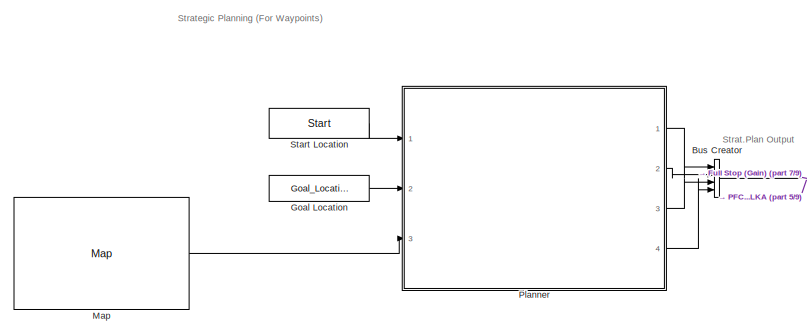
[diagram: root canvas - part 1/9, top center region]
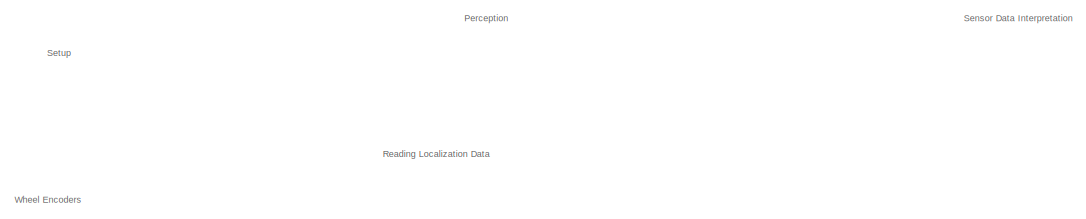
[diagram: root canvas - part 2/9, top left region]
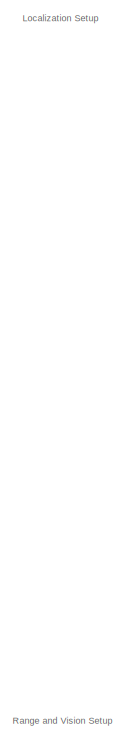
[diagram: root canvas - part 3/9, middle left region]
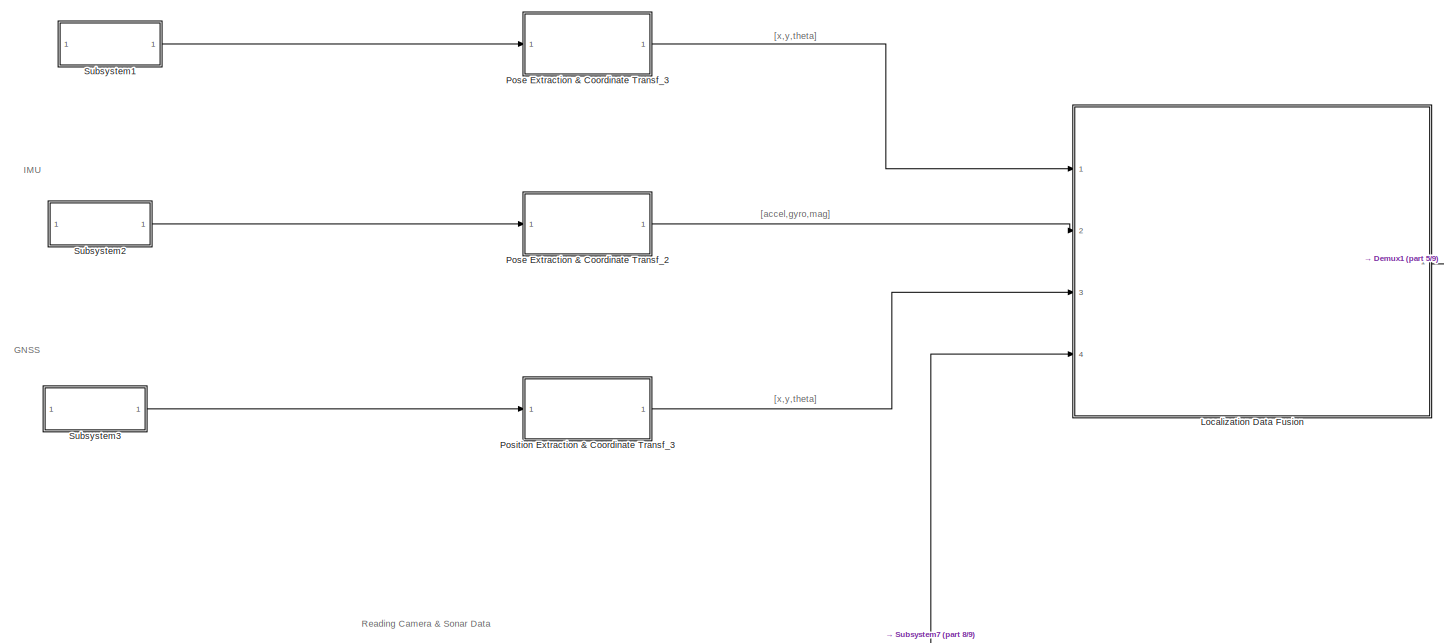
[diagram: root canvas - part 4/9, middle left region]
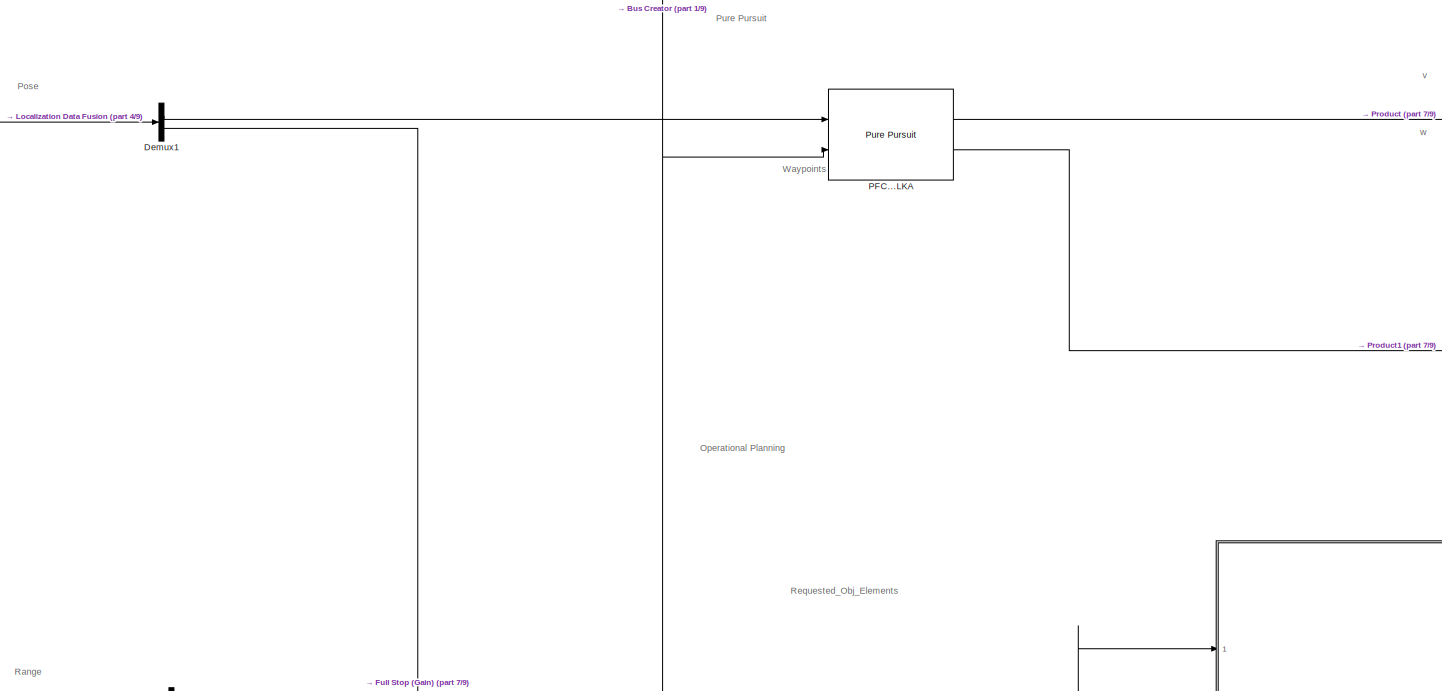
[diagram: root canvas - part 5/9, central region]
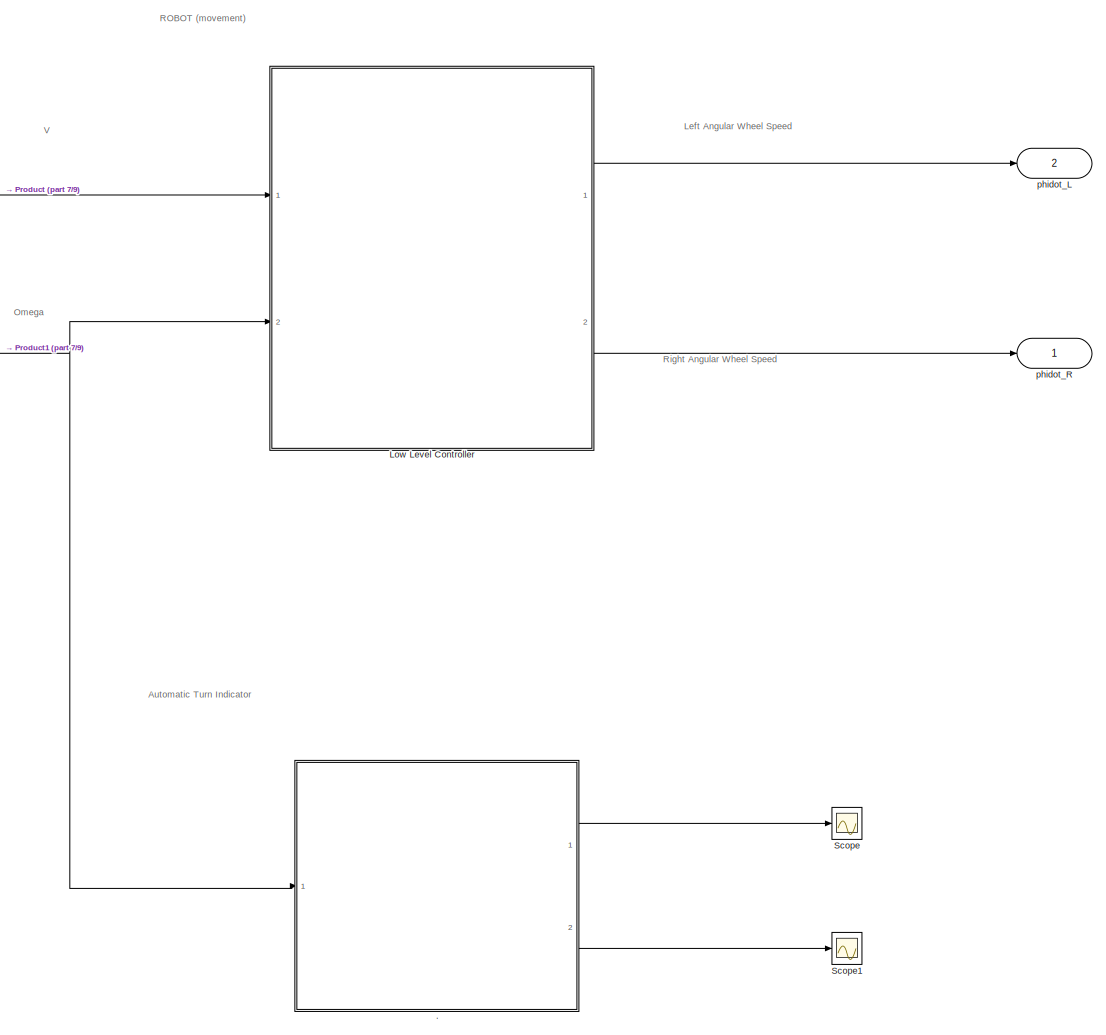
[diagram: root canvas - part 6/9, bottom right region]
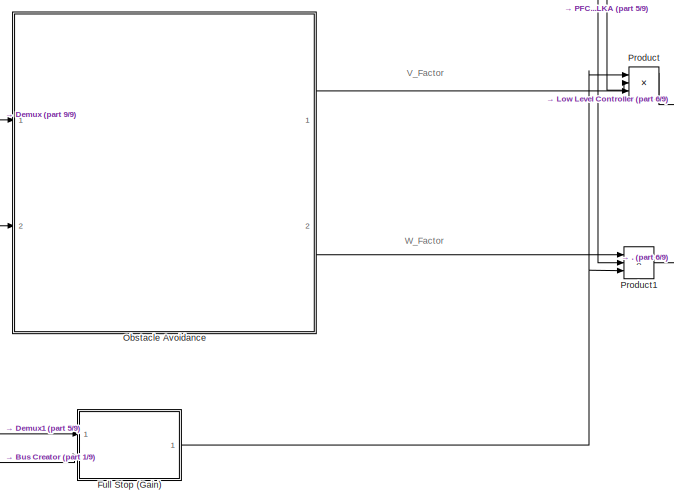
[diagram: root canvas - part 7/9, bottom right region]
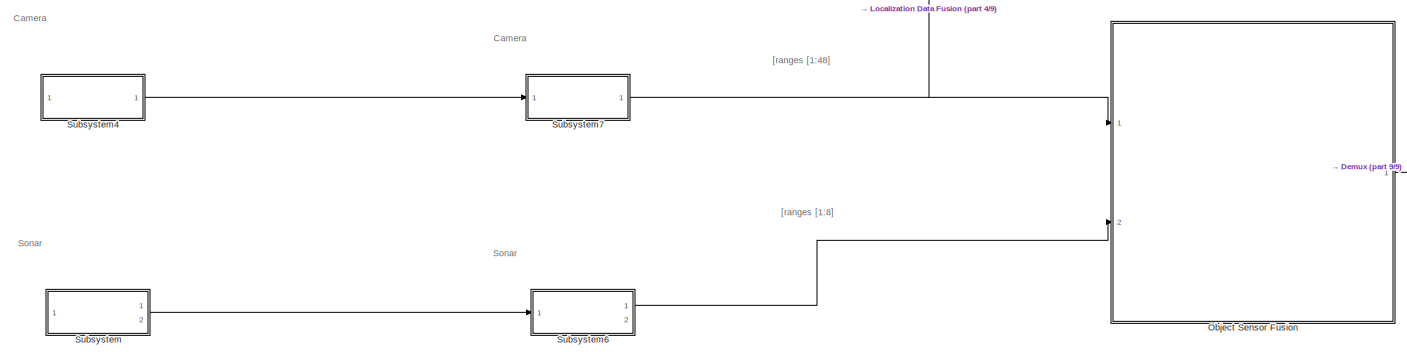
[diagram: root canvas - part 8/9, middle left region]
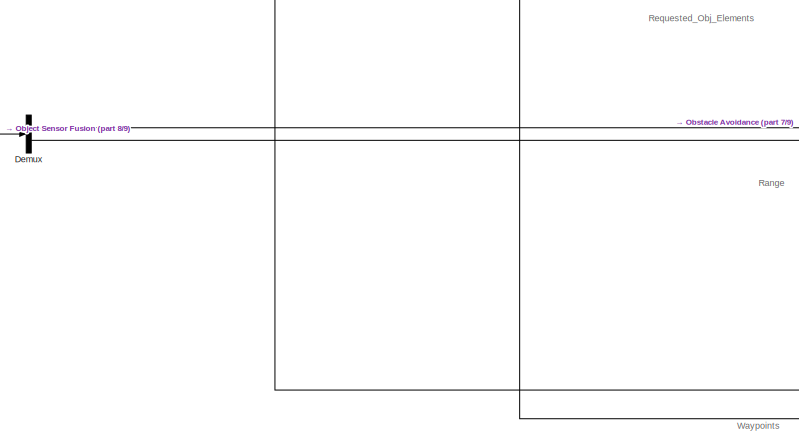
[diagram: root canvas - part 9/9, bottom center region]
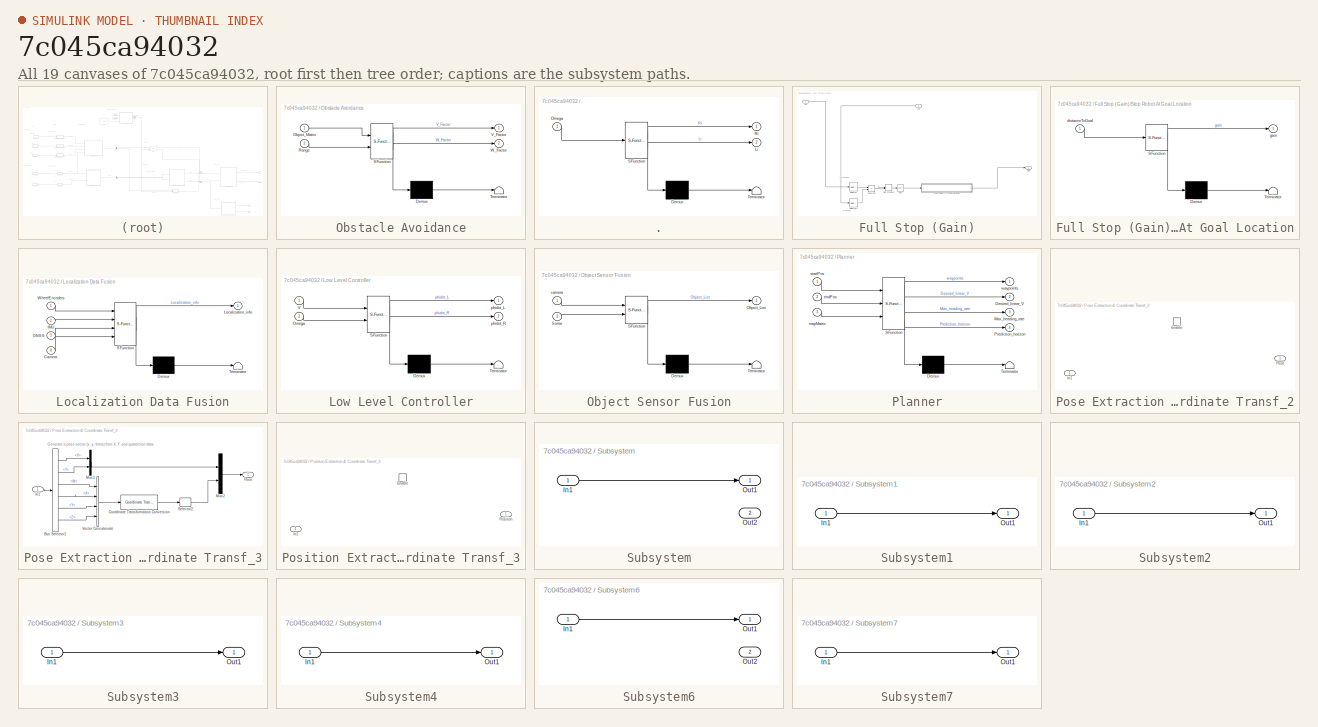
[diagram: thumbnail index - all 19 canvases of the model, root first then tree order]
MODEL slx_7c045ca94032
KIND model
CONFIG AbsTol = auto
CONFIG EnableMultiTasking = off
CONFIG FixedStep = auto
CONFIG MaxStep = auto
CONFIG MinStep = auto
CONFIG RelTol = 1e-3
CONFIG SampleTimeConstraint = Unconstrained
CONFIG SolverName = VariableStepAuto
CONFIG StartTime = 0.0
CONFIG StopTime = 10.0
BLOCK [SubSystem]  Obstacle Avoidance 
  ErrorFcn = Stateflow.Translate.translate
  PermitHierarchicalResolution = ExplicitOnly
  Ports = [2, 2]
  RequestExecContextInheritance = off
  SFBlockType = MATLAB Function
  TreatAsAtomicUnit = on
BLOCK [Demux]  Obstacle Avoidance / Demux 
  Outputs = 1
  Ports = [1, 1]
BLOCK [S-Function]  Obstacle Avoidance / SFunction 
  EnableBusSupport = off
  FunctionName = sf_sfun
  PortCounts = [2 3]
  Ports = [2, 3]
  SFcnIsStateOwnerBlock = off
  SFunctionDeploymentMode = off
  Tag = Stateflow S-Function 7
BLOCK [Terminator]  Obstacle Avoidance / Terminator 
BLOCK [Inport]  Obstacle Avoidance /Object_Matrix
BLOCK [Inport]  Obstacle Avoidance /Range
  Port = 2
BLOCK [Outport]  Obstacle Avoidance /V_Factor
BLOCK [Outport]  Obstacle Avoidance /W_Factor
  Port = 2
BLOCK [SubSystem] .
  ErrorFcn = Stateflow.Translate.translate
  NameLocation = top
  PermitHierarchicalResolution = ExplicitOnly
  Ports = [1, 2]
  RequestExecContextInheritance = off
  SFBlockType = MATLAB Function
  TreatAsAtomicUnit = on
BLOCK [Demux] ./ Demux 
  Outputs = 1
  Ports = [1, 1]
BLOCK [S-Function] ./ SFunction 
  EnableBusSupport = off
  FunctionName = sf_sfun
  PortCounts = [1 3]
  Ports = [1, 3]
  SFcnIsStateOwnerBlock = off
  SFunctionDeploymentMode = off
  Tag = Stateflow S-Function 5
BLOCK [Terminator] ./ Terminator 
BLOCK [Outport] ./Li
  Port = 2
BLOCK [Inport] ./Omega
BLOCK [Outport] ./Ri
BLOCK [BusCreator] Bus Creator
  DisplayOption = bar
  InheritFromInputs = on
  Inputs = 4
  Ports = [4, 1]
BLOCK [Demux] Demux
  Outputs = 2
  Ports = [1, 2]
BLOCK [Demux] Demux1
  Outputs = 2
  Ports = [1, 2]
BLOCK [SubSystem] Full Stop (Gain)
  Ports = [2, 1]
  RequestExecContextInheritance = off
BLOCK [DotProduct] Full Stop (Gain)/Dot Product
  OutDataTypeStr = Inherit: Inherit via internal rule
BLOCK [Inport] Full Stop (Gain)/In1
BLOCK [Inport] Full Stop (Gain)/In2
  Port = 2
BLOCK [Selector] Full Stop (Gain)/Selector
  IndexOptions = Index vector (dialog)
  Indices = [1 2]
  InputPortWidth = 3
  OutputSizes = 1
  Ports = [1, 1]
BLOCK [Selector] Full Stop (Gain)/Selector1
  IndexOptions = Index vector (dialog)
  Indices = [1 2]
  InputPortWidth = 3
  OutputSizes = 1
  Ports = [1, 1]
BLOCK [Sqrt] Full Stop (Gain)/Sqrt
BLOCK [SubSystem] Full Stop (Gain)/Stop Robot At Goal Location
  ErrorFcn = Stateflow.Translate.translate
  PermitHierarchicalResolution = ExplicitOnly
  Ports = [1, 1]
  RequestExecContextInheritance = off
  SFBlockType = MATLAB Function
  TreatAsAtomicUnit = on
BLOCK [Demux] Full Stop (Gain)/Stop Robot At Goal Location/ Demux 
  Outputs = 1
  Ports = [1, 1]
BLOCK [S-Function] Full Stop (Gain)/Stop Robot At Goal Location/ SFunction 
  EnableBusSupport = off
  FunctionName = sf_sfun
  PortCounts = [1 2]
  Ports = [1, 2]
  SFcnIsStateOwnerBlock = off
  SFunctionDeploymentMode = off
  Tag = Stateflow S-Function 1
BLOCK [Terminator] Full Stop (Gain)/Stop Robot At Goal Location/ Terminator 
BLOCK [Inport] Full Stop (Gain)/Stop Robot At Goal Location/distanceToGoal
BLOCK [Outport] Full Stop (Gain)/Stop Robot At Goal Location/gain
BLOCK [Sum] Full Stop (Gain)/Subtract
  IconShape = rectangular
  Inputs = +-
  Ports = [2, 1]
BLOCK [Outport] Full Stop (Gain)/gain
BLOCK [Constant] Goal Location
  Value = Goal_Location
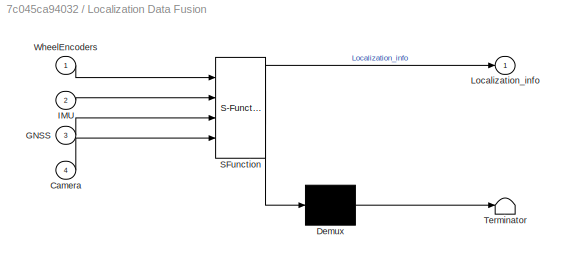
BLOCK [SubSystem] Localization Data Fusion
  ErrorFcn = Stateflow.Translate.translate
  PermitHierarchicalResolution = ExplicitOnly
  Ports = [4, 1]
  RequestExecContextInheritance = off
  SFBlockType = MATLAB Function
  TreatAsAtomicUnit = on
BLOCK [Demux] Localization Data Fusion/ Demux 
  Outputs = 1
  Ports = [1, 1]
BLOCK [S-Function] Localization Data Fusion/ SFunction 
  EnableBusSupport = off
  FunctionName = sf_sfun
  PortCounts = [4 2]
  Ports = [4, 2]
  SFcnIsStateOwnerBlock = off
  SFunctionDeploymentMode = off
  Tag = Stateflow S-Function 2
BLOCK [Terminator] Localization Data Fusion/ Terminator 
BLOCK [Inport] Localization Data Fusion/Camera
  Port = 4
BLOCK [Inport] Localization Data Fusion/GNSS
  Port = 3
BLOCK [Inport] Localization Data Fusion/IMU
  Port = 2
BLOCK [Outport] Localization Data Fusion/Localization_info
  VectorParamsAs1DForOutWhenUnconnected = off
BLOCK [Inport] Localization Data Fusion/WheelEncoders
BLOCK [SubSystem] Low Level Controller
  ErrorFcn = Stateflow.Translate.translate
  PermitHierarchicalResolution = ExplicitOnly
  Ports = [2, 2]
  RequestExecContextInheritance = off
  SFBlockType = MATLAB Function
  TreatAsAtomicUnit = on
BLOCK [Demux] Low Level Controller/ Demux 
  Outputs = 1
  Ports = [1, 1]
BLOCK [S-Function] Low Level Controller/ SFunction 
  EnableBusSupport = off
  FunctionName = sf_sfun
  PortCounts = [2 3]
  Ports = [2, 3]
  SFcnIsStateOwnerBlock = off
  SFunctionDeploymentMode = off
  Tag = Stateflow S-Function 9
BLOCK [Terminator] Low Level Controller/ Terminator 
BLOCK [Inport] Low Level Controller/Omega
  Port = 2
BLOCK [Inport] Low Level Controller/V
BLOCK [Outport] Low Level Controller/phidot_L
BLOCK [Outport] Low Level Controller/phidot_R
  Port = 2
BLOCK [Constant] Map
  Value = Map
BLOCK [SubSystem] Object Sensor Fusion
  ErrorFcn = Stateflow.Translate.translate
  PermitHierarchicalResolution = ExplicitOnly
  Ports = [2, 1]
  RequestExecContextInheritance = off
  SFBlockType = MATLAB Function
  TreatAsAtomicUnit = on
BLOCK [Demux] Object Sensor Fusion/ Demux 
  Outputs = 1
  Ports = [1, 1]
BLOCK [S-Function] Object Sensor Fusion/ SFunction 
  EnableBusSupport = off
  FunctionName = sf_sfun
  PortCounts = [2 2]
  Ports = [2, 2]
  SFcnIsStateOwnerBlock = off
  SFunctionDeploymentMode = off
  Tag = Stateflow S-Function 4
BLOCK [Terminator] Object Sensor Fusion/ Terminator 
BLOCK [Outport] Object Sensor Fusion/Object_List
  VectorParamsAs1DForOutWhenUnconnected = off
BLOCK [Inport] Object Sensor Fusion/Sonar
  Port = 2
BLOCK [Inport] Object Sensor Fusion/camera
BLOCK [Reference] PFC...LKA  REF=robotalgslib/Pure Pursuit
  Ports = [2, 2]
  SourceBlock = robotalgslib/Pure Pursuit
  SourceProductBaseCode = NV,RO
  SourceType = nav.slalgs.internal.PurePursuit
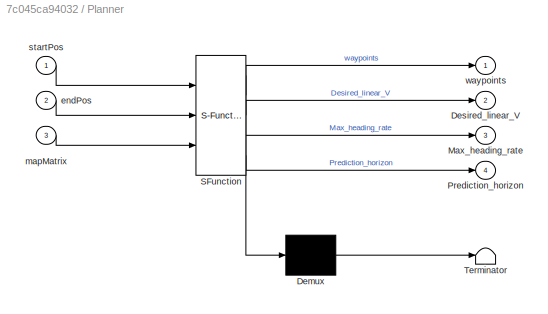
BLOCK [SubSystem] Planner
  ErrorFcn = Stateflow.Translate.translate
  PermitHierarchicalResolution = ExplicitOnly
  Ports = [3, 4]
  RequestExecContextInheritance = off
  SFBlockType = MATLAB Function
  TreatAsAtomicUnit = on
BLOCK [Demux] Planner/ Demux 
  Outputs = 1
  Ports = [1, 1]
BLOCK [S-Function] Planner/ SFunction 
  EnableBusSupport = off
  FunctionName = sf_sfun
  PortCounts = [3 5]
  Ports = [3, 5]
  SFcnIsStateOwnerBlock = off
  SFunctionDeploymentMode = off
  Tag = Stateflow S-Function 3
BLOCK [Terminator] Planner/ Terminator 
BLOCK [Outport] Planner/Desired_linear_V
  Port = 2
BLOCK [Outport] Planner/Max_heading_rate
  Port = 3
BLOCK [Outport] Planner/Prediction_horizon
  Port = 4
BLOCK [Inport] Planner/endPos
  Port = 2
BLOCK [Inport] Planner/mapMatrix
  Port = 3
BLOCK [Inport] Planner/startPos
BLOCK [Outport] Planner/waypoints
  VectorParamsAs1DForOutWhenUnconnected = off
BLOCK [SubSystem] Pose Extraction & Coordinate Transf_2
  Ports = [1, 1, 1]
  RequestExecContextInheritance = off
BLOCK [EnablePort] Pose Extraction & Coordinate Transf_2/Enable
  Ports = []
BLOCK [Inport] Pose Extraction & Coordinate Transf_2/In1
BLOCK [Outport] Pose Extraction & Coordinate Transf_2/Pose
  VectorParamsAs1DForOutWhenUnconnected = off
BLOCK [SubSystem] Pose Extraction & Coordinate Transf_3
  Ports = [1, 1]
  RequestExecContextInheritance = off
BLOCK [BusSelector] Pose Extraction & Coordinate Transf_3/Bus Selector1
  OutputSignals = Pose.Pose.Position.X,Pose.Pose.Position.Y,Pose.Pose.Orientation.W,Pose.Pose.Orientation.X,Pose.Pose.Orientation.Y,Pose.Pose.Orientation.Z
  Ports = [1, 6]
BLOCK [Reference] Pose Extraction & Coordinate Transf_3/Coordinate Transformation Conversion  REF=robotcorelib/Coordinate Transformation Conversion
  Ports = [1, 1]
  SourceBlock = robotcorelib/Coordinate Transformation Conversion
  SourceProductBaseCode = NV,RO,RR,UV
  SourceType = robotics.slcore.internal.block.CoordinateTransformationConversion
BLOCK [Inport] Pose Extraction & Coordinate Transf_3/In1
BLOCK [Mux] Pose Extraction & Coordinate Transf_3/Mux1
  DisplayOption = bar
  Inputs = 2
  Ports = [2, 1]
BLOCK [Mux] Pose Extraction & Coordinate Transf_3/Mux2
  DisplayOption = bar
  Inputs = 2
  Ports = [2, 1]
BLOCK [Outport] Pose Extraction & Coordinate Transf_3/Pose
  VectorParamsAs1DForOutWhenUnconnected = off
BLOCK [Selector] Pose Extraction & Coordinate Transf_3/Selector2
  IndexOptions = Index vector (dialog)
  Indices = 1
  InputPortWidth = 3
  OutputSizes = 1
  Ports = [1, 1]
BLOCK [Concatenate] Pose Extraction & Coordinate Transf_3/Vector Concatenate
  NumInputs = 4
  Ports = [4, 1]
BLOCK [SubSystem] Position Extraction & Coordinate Transf_3
  Ports = [1, 1, 1]
  RequestExecContextInheritance = off
BLOCK [EnablePort] Position Extraction & Coordinate Transf_3/Enable
  Ports = []
BLOCK [Inport] Position Extraction & Coordinate Transf_3/In1
BLOCK [Outport] Position Extraction & Coordinate Transf_3/Position
  VectorParamsAs1DForOutWhenUnconnected = off
BLOCK [Product] Product
  Inputs = 3
  Ports = [3, 1]
BLOCK [Product] Product1
  Inputs = 3
  Ports = [3, 1]
BLOCK [Scope] Scope
  Floating = off
  NumInputPorts = 1
  Ports = [1]
  ScopeSpecificationString = Simulink.scopes.TimeScopeBlockCfg('CurrentConfiguration', extmgr.ConfigurationSet(extmgr.Configuration('Core','General UI',true),extmgr.Configuration('Core','Source UI',true),extmgr.Configuration('Sources','WiredSimulink',true),extmgr.Configuration('Visuals','Time Domain',true),extmgr.Configuration('Tools','Plot Navigation',true),extmgr.Configuration('Tools','Measurements',true,'Version','2021a'))...<+19ch>
BLOCK [Scope] Scope1
  Floating = off
  NumInputPorts = 1
  Ports = [1]
  ScopeSpecificationString = Simulink.scopes.TimeScopeBlockCfg('CurrentConfiguration', extmgr.ConfigurationSet(extmgr.Configuration('Core','General UI',true),extmgr.Configuration('Core','Source UI',true),extmgr.Configuration('Sources','WiredSimulink',true,'DataLoggingVariableName','ScopeData1'),extmgr.Configuration('Visuals','Time Domain',true),extmgr.Configuration('Tools','Plot Navigation',true),extmgr.Configuration('Tools',...<+58ch>
BLOCK [Constant] Start Location
  Value = Start
BLOCK [SubSystem] Subsystem
  PortSchema = {"entries":[{"content":{"sides":[{"content":{"connectorIds":["In1"]},"type":"ConnectorPlacement.EquallySpacedRectSide","uuid":"e12de4e3-7626-4c26-8ba2-c587ebf01e53"},{"content":{"connectorIds":["Out1"],"side":"RIGHT"},"type":"ConnectorPlacement.EquallySpacedRectSide","uuid":"0359bd44-2cf5-4332-8d76-03b01f15ad87"},{"content":{"connectorIds":[],"side":"TOP"},"type":"ConnectorPlacement.EquallySpacedR...<+392ch>
  Ports = [1, 2]
  RequestExecContextInheritance = off
BLOCK [Inport] Subsystem/In1
BLOCK [Outport] Subsystem/Out1
BLOCK [Outport] Subsystem/Out2
  Port = 2
BLOCK [SubSystem] Subsystem1
  Ports = [1, 1]
  RequestExecContextInheritance = off
BLOCK [Inport] Subsystem1/In1
BLOCK [Outport] Subsystem1/Out1
BLOCK [SubSystem] Subsystem2
  Ports = [1, 1]
  RequestExecContextInheritance = off
BLOCK [Inport] Subsystem2/In1
BLOCK [Outport] Subsystem2/Out1
BLOCK [SubSystem] Subsystem3
  Ports = [1, 1]
  RequestExecContextInheritance = off
BLOCK [Inport] Subsystem3/In1
BLOCK [Outport] Subsystem3/Out1
BLOCK [SubSystem] Subsystem4
  Ports = [1, 1]
  RequestExecContextInheritance = off
BLOCK [Inport] Subsystem4/In1
BLOCK [Outport] Subsystem4/Out1
BLOCK [SubSystem] Subsystem6
  PortSchema = {"entries":[{"content":{"sides":[{"content":{"connectorIds":["In1"]},"type":"ConnectorPlacement.EquallySpacedRectSide","uuid":"e12de4e3-7626-4c26-8ba2-c587ebf01e53"},{"content":{"connectorIds":["Out1"],"side":"RIGHT"},"type":"ConnectorPlacement.EquallySpacedRectSide","uuid":"0359bd44-2cf5-4332-8d76-03b01f15ad87"},{"content":{"connectorIds":[],"side":"TOP"},"type":"ConnectorPlacement.EquallySpacedR...<+392ch>
  Ports = [1, 2]
  RequestExecContextInheritance = off
BLOCK [Inport] Subsystem6/In1
BLOCK [Outport] Subsystem6/Out1
BLOCK [Outport] Subsystem6/Out2
  Port = 2
BLOCK [SubSystem] Subsystem7
  Ports = [1, 1]
  RequestExecContextInheritance = off
BLOCK [Inport] Subsystem7/In1
BLOCK [Outport] Subsystem7/Out1
BLOCK [Outport] phidot_L
  IconDisplay = Signal name
  Port = 2
BLOCK [Outport] phidot_R
  IconDisplay = Signal name
ANNOTATION (root): Perception
ANNOTATION (root): Range
ANNOTATION (root): Waypoints
ANNOTATION (root): Pose
ANNOTATION (root): Strat.Plan Output
ANNOTATION (root): [x,y,theta]
ANNOTATION (root): [accel,gyro,mag]
ANNOTATION (root): [ranges [1:48]
ANNOTATION (root): [ranges [1:8]
ANNOTATION (root): w
ANNOTATION (root): ROBOT (movement)
ANNOTATION (root): Automatic Turn Indicator
ANNOTATION (root): Setup
ANNOTATION (root): V
ANNOTATION (root): v
ANNOTATION (root): Sensor Data Interpretation
ANNOTATION (root): Camera
ANNOTATION (root): GNSS
ANNOTATION (root): IMU
ANNOTATION (root): Left Angular Wheel Speed
ANNOTATION (root): Localization Setup
ANNOTATION (root): Omega
ANNOTATION (root): Operational Planning
ANNOTATION (root): Pure Pursuit
ANNOTATION (root): Range and Vision Setup
ANNOTATION (root): Reading Camera & Sonar Data
ANNOTATION (root): Reading Localization Data
ANNOTATION (root): Requested_Obj_Elements
ANNOTATION (root): Right Angular Wheel Speed
ANNOTATION (root): Sonar
ANNOTATION (root): Strategic Planning (For Waypoints)
ANNOTATION (root): V_Factor
ANNOTATION (root): W_Factor
ANNOTATION (root): Wheel Encoders
ANNOTATION Full Stop (Gain): Actual Pose
ANNOTATION Full Stop (Gain): Goal Loc
ANNOTATION Pose Extraction & Coordinate Transf_3: Generate a pose vector (x, y, theta) from X, Y, and quaternion data
LINE  Obstacle Avoidance :1 -> Product:3
LINE  Obstacle Avoidance :2 -> Product1:1
LINE .:1 -> Scope:1
LINE .:2 -> Scope1:1
NET Bus Creator:1 -> Full Stop (Gain):2, PFC...LKA:2
LINE Demux1:1 -> PFC...LKA:1
LINE Demux1:2 -> Full Stop (Gain):1
LINE Demux:1 ->  Obstacle Avoidance :1
LINE Demux:2 ->  Obstacle Avoidance :2
LINE Full Stop (Gain)/Dot Product:1 -> Full Stop (Gain)/Sqrt:1
LINE Full Stop (Gain)/In1:1 -> Full Stop (Gain)/Selector:1
LINE Full Stop (Gain)/In2:1 -> Full Stop (Gain)/Selector1:1
LINE Full Stop (Gain)/Selector1:1 -> Full Stop (Gain)/Subtract:2
LINE Full Stop (Gain)/Selector:1 -> Full Stop (Gain)/Subtract:1
LINE Full Stop (Gain)/Sqrt:1 -> Full Stop (Gain)/Stop Robot At Goal Location:1
LINE Full Stop (Gain)/Stop Robot At Goal Location:1 -> Full Stop (Gain)/gain:1
NET Full Stop (Gain)/Subtract:1 -> Full Stop (Gain)/Dot Product:1, Full Stop (Gain)/Dot Product:2
NET Full Stop (Gain):1 -> Product1:3, Product:1
LINE Goal Location:1 -> Planner:2
LINE Localization Data Fusion:1 -> Demux1:1
LINE Low Level Controller:1 -> phidot_L:1
LINE Low Level Controller:2 -> phidot_R:1
LINE Map:1 -> Planner:3
LINE Object Sensor Fusion:1 -> Demux:1
LINE PFC...LKA:1 -> Product:2
LINE PFC...LKA:2 -> Product1:2
LINE Planner:1 -> Bus Creator:1
LINE Planner:2 -> Bus Creator:2
LINE Planner:3 -> Bus Creator:3
LINE Planner:4 -> Bus Creator:4
LINE Pose Extraction & Coordinate Transf_2:1 -> Localization Data Fusion:2
LINE Pose Extraction & Coordinate Transf_3/Bus Selector1:1 -> Pose Extraction & Coordinate Transf_3/Mux1:1
LINE Pose Extraction & Coordinate Transf_3/Bus Selector1:2 -> Pose Extraction & Coordinate Transf_3/Mux1:2
LINE Pose Extraction & Coordinate Transf_3/Bus Selector1:3 -> Pose Extraction & Coordinate Transf_3/Vector Concatenate:1
LINE Pose Extraction & Coordinate Transf_3/Bus Selector1:4 -> Pose Extraction & Coordinate Transf_3/Vector Concatenate:2
LINE Pose Extraction & Coordinate Transf_3/Bus Selector1:5 -> Pose Extraction & Coordinate Transf_3/Vector Concatenate:3
LINE Pose Extraction & Coordinate Transf_3/Bus Selector1:6 -> Pose Extraction & Coordinate Transf_3/Vector Concatenate:4
LINE Pose Extraction & Coordinate Transf_3/Coordinate Transformation Conversion:1 -> Pose Extraction & Coordinate Transf_3/Selector2:1
LINE Pose Extraction & Coordinate Transf_3/In1:1 -> Pose Extraction & Coordinate Transf_3/Bus Selector1:1
LINE Pose Extraction & Coordinate Transf_3/Mux1:1 -> Pose Extraction & Coordinate Transf_3/Mux2:1
LINE Pose Extraction & Coordinate Transf_3/Mux2:1 -> Pose Extraction & Coordinate Transf_3/Pose:1
LINE Pose Extraction & Coordinate Transf_3/Selector2:1 -> Pose Extraction & Coordinate Transf_3/Mux2:2
LINE Pose Extraction & Coordinate Transf_3/Vector Concatenate:1 -> Pose Extraction & Coordinate Transf_3/Coordinate Transformation Conversion:1
LINE Pose Extraction & Coordinate Transf_3:1 -> Localization Data Fusion:1
LINE Position Extraction & Coordinate Transf_3:1 -> Localization Data Fusion:3
NET Product1:1 -> .:1, Low Level Controller:2
LINE Product:1 -> Low Level Controller:1
LINE Start Location:1 -> Planner:1
LINE Subsystem/In1:1 -> Subsystem/Out1:1
LINE Subsystem1/In1:1 -> Subsystem1/Out1:1
LINE Subsystem1:1 -> Pose Extraction & Coordinate Transf_3:1
LINE Subsystem2/In1:1 -> Subsystem2/Out1:1
LINE Subsystem2:1 -> Pose Extraction & Coordinate Transf_2:1
LINE Subsystem3/In1:1 -> Subsystem3/Out1:1
LINE Subsystem3:1 -> Position Extraction & Coordinate Transf_3:1
LINE Subsystem4/In1:1 -> Subsystem4/Out1:1
LINE Subsystem4:1 -> Subsystem7:1
LINE Subsystem6/In1:1 -> Subsystem6/Out1:1
LINE Subsystem6:1 -> Object Sensor Fusion:2
LINE Subsystem7/In1:1 -> Subsystem7/Out1:1
NET Subsystem7:1 -> Localization Data Fusion:4, Object Sensor Fusion:1
LINE Subsystem:1 -> Subsystem6:1
note: NET lines group one-source signal fan-out (src -> all destinations, sorted); 1:1 wires keep LINE
CHART Full Stop (Gain)/Stop Robot At Goal Location states=1 transitions=1
  STATE_LABEL 'eML_blk_kernel()'
  STATE_LABEL 'SCRIPT:\nfunction gain  = slowDownNearGoal(distanceToGoal)\n%%slowDownNearGoal gradually slows the robot when it reaches a goal location.\n\n%continue to move at the normal angular and linear velocity\ngain = 1;\n\n%assume that the robot is away from goal\n%awayFromGoal = 1;\n\n%threshold to determine if the robot has reached the goal\natGoalThreshold = 0.5;\nslowThreshold = 1;\n\n%if the robot is within range ...<+310ch>'
CHART Localization Data Fusion states=1 transitions=1
  STATE_LABEL 'eML_blk_kernel()'
  STATE_LABEL "SCRIPT:\nfunction Localization_info = Localization (WheelEncoders, IMU, GNSS, Camera)\n\n%fusion for robot's Localization\n\n\n\n\n\n"
CHART Planner states=1 transitions=1
  STATE_LABEL 'eML_blk_kernel()'
  STATE_LABEL 'SCRIPT:\nfunction [waypoints, Desired_linear_V, Max_heading_rate, Prediction_horizon] = planning(startPos, endPos, mapMatrix)\n\n\n\n\n\n\n\n'
CHART Object Sensor Fusion states=1 transitions=1
  STATE_LABEL 'eML_blk_kernel()'
  STATE_LABEL 'SCRIPT:\nfunction Object_List  = Objects (camera, Sonar)\n\n\n\n\n\n\n\n'
CHART . states=1 transitions=1
  STATE_LABEL 'eML_blk_kernel()'
  STATE_LABEL 'SCRIPT:\nfunction [Ri,Li]  = LowLevel_Control(Omega)\n'
CHART  Obstacle Avoidance  states=1 transitions=1
  STATE_LABEL 'eML_blk_kernel()'
  STATE_LABEL 'SCRIPT:\nfunction [V_Factor, W_Factor] = Obstacle_avoidance(Object_Matrix, Range)\n'
CHART Low Level Controller states=1 transitions=1
  STATE_LABEL 'eML_blk_kernel()'
  STATE_LABEL 'SCRIPT:\nfunction [phidot_L, phidot_R]  = LowLevel_Control(V, Omega)\n'
CHART  states=0 transitions=0
CHART  states=0 transitions=0
CHART  states=0 transitions=0
CHART  states=0 transitions=0
CHART  states=0 transitions=0
CHART  states=0 transitions=0
CHART  states=0 transitions=0
